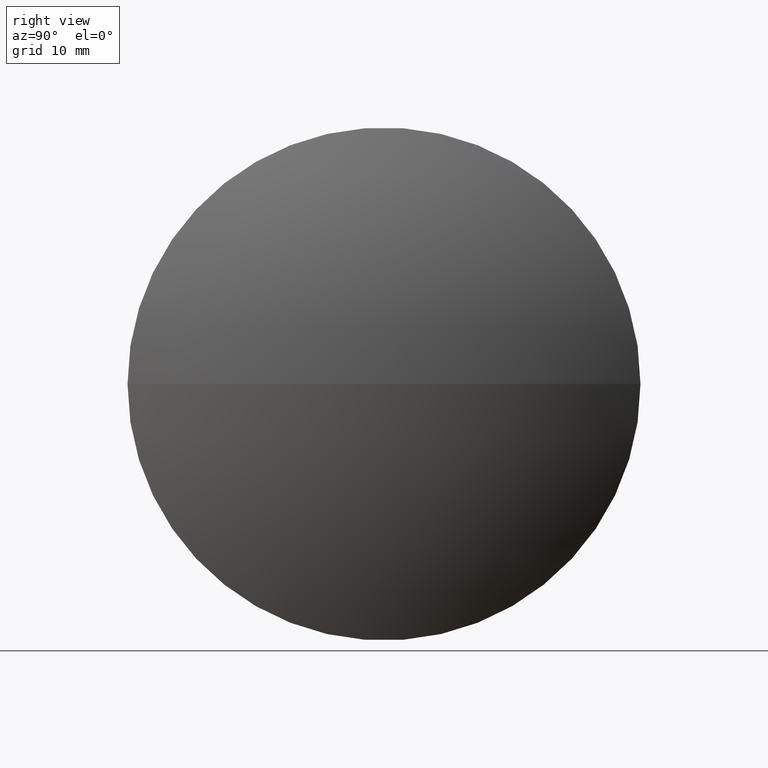
[diagram: clean part render]
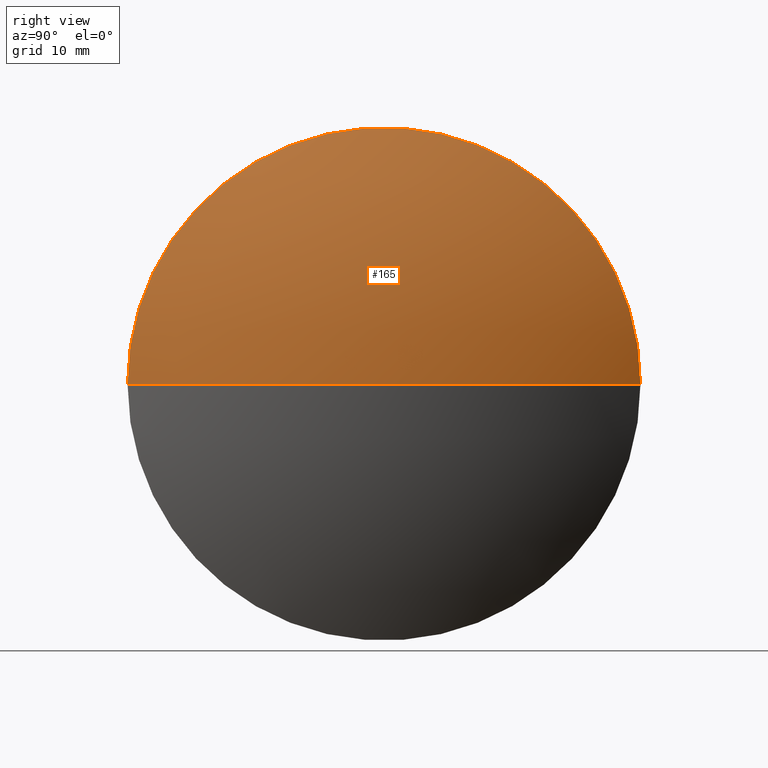
[diagram: same view with one face highlighted and labeled with its STEP entity id]
A machine part, right view. The second image highlights one B-rep face of the part: STEP entity #165.
In plain terms, the highlighted spherical surface has radius 53.3038 mm.
Its self-contained STEP definition (entity closure, byte-faithful):
#6 = DIRECTION ( 'NONE',  ( -0.000000000000000000, 0.000000000000000000, -1.000000000000000000 ) ) ;
#10 = DIRECTION ( 'NONE',  ( -3.507240206365479357E-30, 1.224646799147353207E-16, -1.000000000000000000 ) ) ;
#12 = CIRCLE ( 'NONE', #50, 53.30381200000022801 ) ;
#13 = DIRECTION ( 'NONE',  ( -1.000000000000000000, -2.863878963965248009E-14, -0.000000000000000000 ) ) ;
#22 = CIRCLE ( 'NONE', #34, 25.40000018338206544 ) ;
#29 = CARTESIAN_POINT ( 'NONE',  ( 2401.740445960312172, -250.2492981383400661, -3.110602892292074775E-15 ) ) ;
#31 = EDGE_CURVE ( 'NONE', #48, #67, #22, .T. ) ;
#32 = CARTESIAN_POINT ( 'NONE',  ( 2354.877492954598893, -224.8492979549595532, 0.000000000000000000 ) ) ;
#34 = AXIS2_PLACEMENT_3D ( 'NONE', #128, #13, #88 ) ;
#37 = ORIENTED_EDGE ( 'NONE', *, *, #124, .T. ) ;
#43 = FACE_OUTER_BOUND ( 'NONE', #141, .T. ) ;
#48 = VERTEX_POINT ( 'NONE', #29 ) ;
#50 = AXIS2_PLACEMENT_3D ( 'NONE', #163, #152, #92 ) ;
#52 = ORIENTED_EDGE ( 'NONE', *, *, #31, .F. ) ;
#67 = VERTEX_POINT ( 'NONE', #91 ) ;
#69 = SPHERICAL_SURFACE ( 'NONE', #160, 53.30381200000017117 ) ;
#84 = ORIENTED_EDGE ( 'NONE', *, *, #97, .F. ) ;
#88 = DIRECTION ( 'NONE',  ( 3.496765406644427829E-14, -1.000000000000000000, 0.000000000000000000 ) ) ;
#91 = CARTESIAN_POINT ( 'NONE',  ( 2401.740445960310353, -199.4492977715763971, 0.000000000000000000 ) ) ;
#92 = DIRECTION ( 'NONE',  ( 1.000000000000000000, 0.000000000000000000, 0.000000000000000000 ) ) ;
#96 = CARTESIAN_POINT ( 'NONE',  ( 2354.877492954598893, -224.8492979549595532, 0.000000000000000000 ) ) ;
#97 = EDGE_CURVE ( 'NONE', #157, #48, #114, .T. ) ;
#114 = CIRCLE ( 'NONE', #147, 53.30381200000017117 ) ;
#120 = DIRECTION ( 'NONE',  ( 0.000000000000000000, 1.000000000000000000, 1.224646799147353207E-16 ) ) ;
#122 = DIRECTION ( 'NONE',  ( -2.499385277642401143E-14, 1.000000000000000000, 0.000000000000000000 ) ) ;
#124 = EDGE_CURVE ( 'NONE', #157, #67, #12, .T. ) ;
#128 = CARTESIAN_POINT ( 'NONE',  ( 2401.740445960311263, -224.8492979549582174, 0.000000000000000000 ) ) ;
#141 = EDGE_LOOP ( 'NONE', ( #84, #37, #52 ) ) ;
#147 = AXIS2_PLACEMENT_3D ( 'NONE', #96, #10, #120 ) ;
#152 = DIRECTION ( 'NONE',  ( -0.000000000000000000, 0.000000000000000000, 1.000000000000000000 ) ) ;
#157 = VERTEX_POINT ( 'NONE', #161 ) ;
#160 = AXIS2_PLACEMENT_3D ( 'NONE', #32, #6, #122 ) ;
#161 = CARTESIAN_POINT ( 'NONE',  ( 2408.181304954599455, -224.8492979549580468, 0.000000000000000000 ) ) ;
#163 = CARTESIAN_POINT ( 'NONE',  ( 2354.877492954598893, -224.8492979549595532, 0.000000000000000000 ) ) ;
#165 = ADVANCED_FACE ( 'NONE', ( #43 ), #69, .T. ) ;